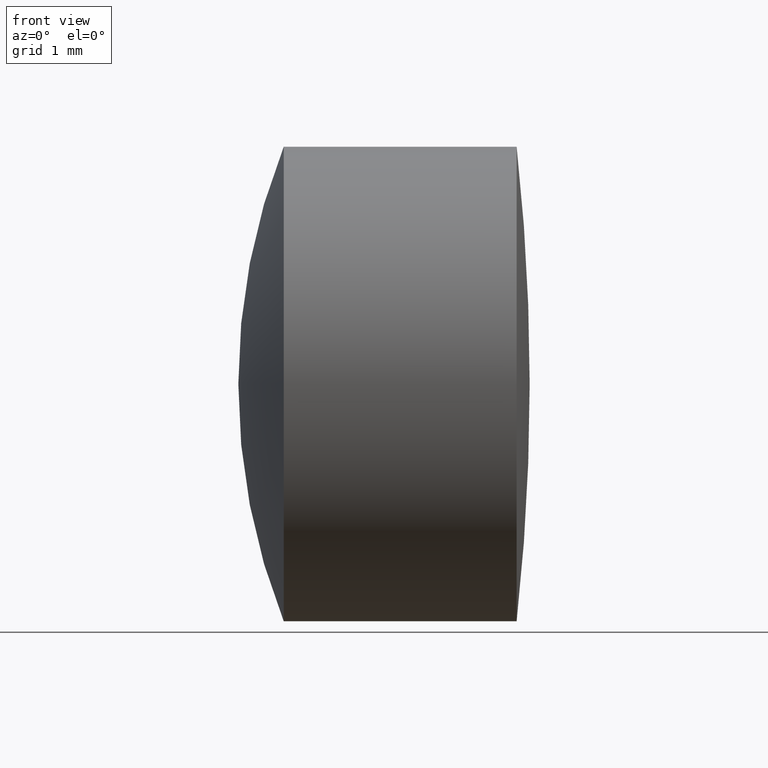
[diagram: clean part render]
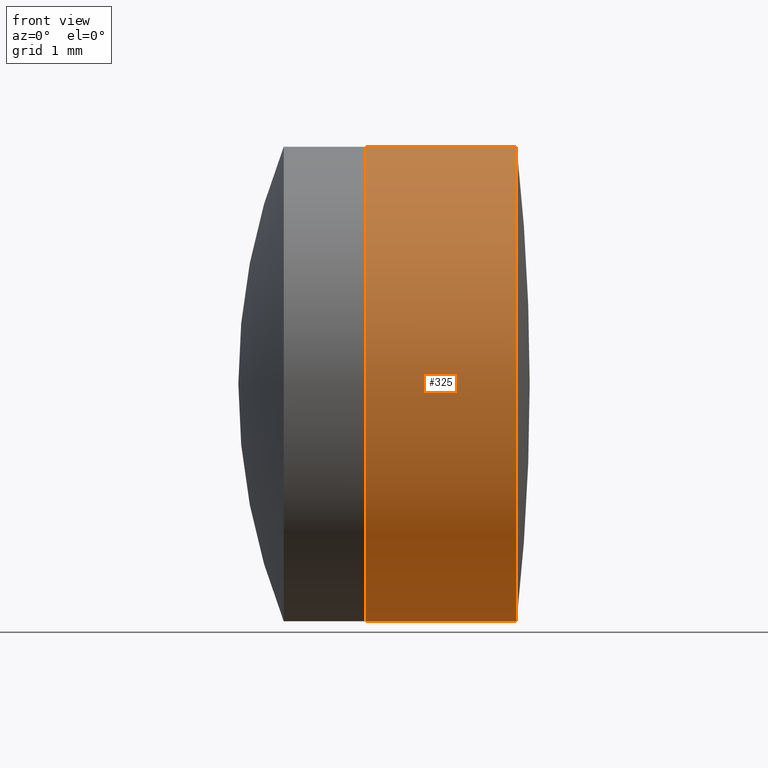
[diagram: same view with one face highlighted and labeled with its STEP entity id]
A machine part, front view. The second image highlights one B-rep face of the part: STEP entity #325.
In plain terms, the highlighted cylindrical surface (partial cylindrical patch) has radius 3.175 mm, axis along (-1, -0, -0).
Its self-contained STEP definition (entity closure, byte-faithful):
#15 = CARTESIAN_POINT ( 'NONE',  ( -0.5519199926577972300, 0.0000000000000000000, 0.0000000000000000000 ) ) ;
#26 = DIRECTION ( 'NONE',  ( -1.000000000000000000, -0.0000000000000000000, -0.0000000000000000000 ) ) ;
#30 = LINE ( 'NONE', #165, #113 ) ;
#48 = DIRECTION ( 'NONE',  ( -1.000000000000000000, -0.0000000000000000000, -0.0000000000000000000 ) ) ;
#50 = FACE_OUTER_BOUND ( 'NONE', #281, .T. ) ;
#58 = ORIENTED_EDGE ( 'NONE', *, *, #225, .F. ) ;
#65 = EDGE_CURVE ( 'NONE', #342, #323, #263, .T. ) ;
#68 = DIRECTION ( 'NONE',  ( -1.000000000000000000, -0.0000000000000000000, -0.0000000000000000000 ) ) ;
#73 = AXIS2_PLACEMENT_3D ( 'NONE', #268, #48, #240 ) ;
#76 = CARTESIAN_POINT ( 'NONE',  ( -0.5519199926577972300, 0.0000000000000000000, 3.175000000000000700 ) ) ;
#102 = CARTESIAN_POINT ( 'NONE',  ( 261.6806597883319800, 0.0000000000000000000, 0.0000000000000000000 ) ) ;
#113 = VECTOR ( 'NONE', #26, 1000.000000000000000 ) ;
#118 = AXIS2_PLACEMENT_3D ( 'NONE', #102, #126, #346 ) ;
#120 = VERTEX_POINT ( 'NONE', #239 ) ;
#126 = DIRECTION ( 'NONE',  ( -1.000000000000000000, -0.0000000000000000000, -0.0000000000000000000 ) ) ;
#135 = VECTOR ( 'NONE', #178, 1000.000000000000000 ) ;
#147 = CIRCLE ( 'NONE', #118, 3.175000000000000700 ) ;
#165 = CARTESIAN_POINT ( 'NONE',  ( -0.5519199926577972300, 3.888253587292847100E-016, -3.175000000000000700 ) ) ;
#178 = DIRECTION ( 'NONE',  ( -1.000000000000000000, -0.0000000000000000000, -0.0000000000000000000 ) ) ;
#179 = ORIENTED_EDGE ( 'NONE', *, *, #65, .T. ) ;
#200 = DIRECTION ( 'NONE',  ( 0.0000000000000000000, 0.0000000000000000000, 1.000000000000000000 ) ) ;
#205 = LINE ( 'NONE', #76, #135 ) ;
#207 = EDGE_CURVE ( 'NONE', #342, #286, #30, .T. ) ;
#225 = EDGE_CURVE ( 'NONE', #286, #120, #147, .T. ) ;
#239 = CARTESIAN_POINT ( 'NONE',  ( 261.6806597883319800, 0.0000000000000000000, 3.175000000000000700 ) ) ;
#240 = DIRECTION ( 'NONE',  ( 0.0000000000000000000, 0.0000000000000000000, 1.000000000000000000 ) ) ;
#247 = CYLINDRICAL_SURFACE ( 'NONE', #317, 3.175000000000000700 ) ;
#256 = CARTESIAN_POINT ( 'NONE',  ( 263.7063849064184100, 0.0000000000000000000, 3.175000000000000700 ) ) ;
#260 = EDGE_CURVE ( 'NONE', #323, #120, #205, .T. ) ;
#263 = CIRCLE ( 'NONE', #73, 3.175000000000000700 ) ;
#268 = CARTESIAN_POINT ( 'NONE',  ( 263.7063849064184100, 0.0000000000000000000, 0.0000000000000000000 ) ) ;
#281 = EDGE_LOOP ( 'NONE', ( #300, #179, #282, #58 ) ) ;
#282 = ORIENTED_EDGE ( 'NONE', *, *, #260, .T. ) ;
#286 = VERTEX_POINT ( 'NONE', #288 ) ;
#288 = CARTESIAN_POINT ( 'NONE',  ( 261.6806597883319800, 3.888253587292847600E-016, -3.175000000000000700 ) ) ;
#300 = ORIENTED_EDGE ( 'NONE', *, *, #207, .F. ) ;
#317 = AXIS2_PLACEMENT_3D ( 'NONE', #15, #68, #200 ) ;
#323 = VERTEX_POINT ( 'NONE', #256 ) ;
#325 = ADVANCED_FACE ( 'NONE', ( #50 ), #247, .T. ) ;
#333 = CARTESIAN_POINT ( 'NONE',  ( 263.7063849064184100, 3.888253587292847100E-016, -3.175000000000000700 ) ) ;
#342 = VERTEX_POINT ( 'NONE', #333 ) ;
#346 = DIRECTION ( 'NONE',  ( 0.0000000000000000000, 0.0000000000000000000, 1.000000000000000000 ) ) ;